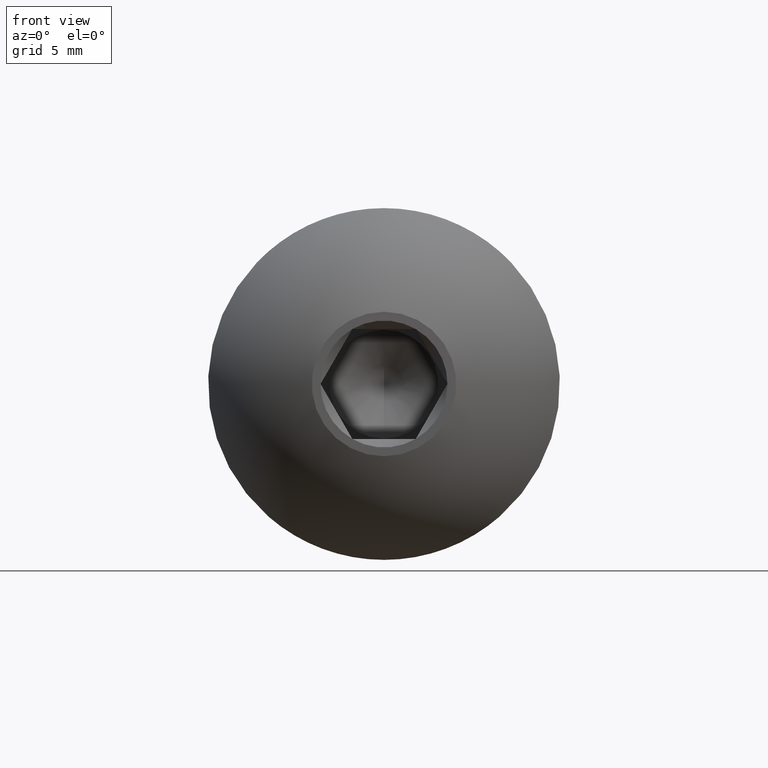
[diagram: clean part render]
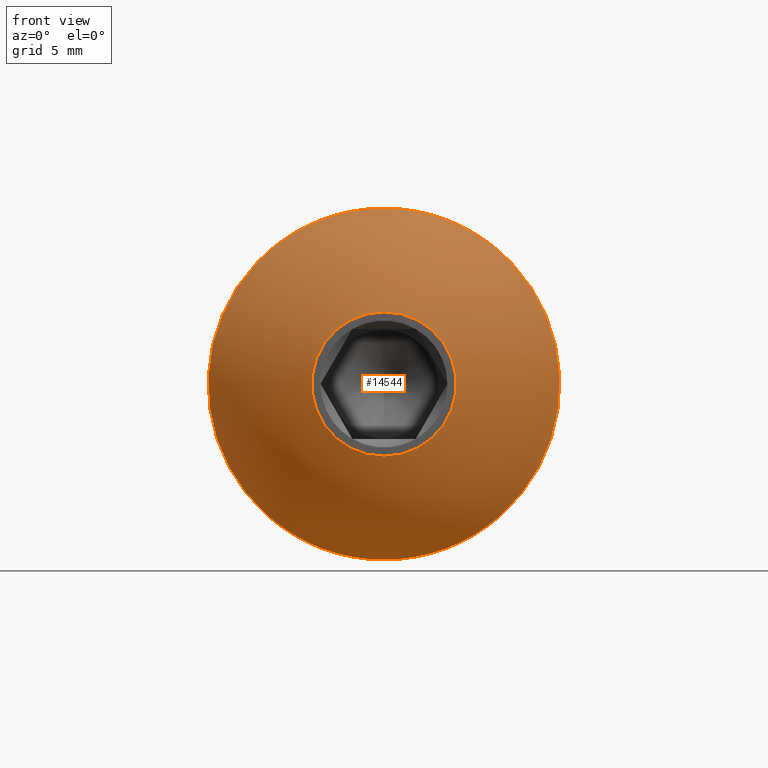
[diagram: same view with one face highlighted and labeled with its STEP entity id]
A machine part, front view. The second image highlights one B-rep face of the part: STEP entity #14544.
In plain terms, the highlighted spherical surface has radius 9.2531 mm.
Its self-contained STEP definition (entity closure, byte-faithful):
#296 = CIRCLE ( 'NONE', #6886, 3.286751345948126790 ) ;
#757 = CIRCLE ( 'NONE', #7056, 8.000000000000000000 ) ;
#837 = FACE_OUTER_BOUND ( 'NONE', #874, .T. ) ;
#874 = EDGE_LOOP ( 'NONE', ( #12892 ) ) ;
#1619 = CARTESIAN_POINT ( 'NONE',  ( 0.000000000000000000, 0.000000000000000000, 0.000000000000000000 ) ) ;
#2430 = DIRECTION ( 'NONE',  ( 1.000000000000000000, 0.000000000000000000, 0.000000000000000000 ) ) ;
#2717 = CARTESIAN_POINT ( 'NONE',  ( 0.000000000000000000, 4.000000000000000000, 0.000000000000000000 ) ) ;
#2781 = DIRECTION ( 'NONE',  ( 0.000000000000000000, 0.000000000000000000, -1.000000000000000000 ) ) ;
#3840 = DIRECTION ( 'NONE',  ( 0.000000000000000000, 0.000000000000000000, -1.000000000000000000 ) ) ;
#3858 = DIRECTION ( 'NONE',  ( -0.000000000000000000, -1.000000000000000000, -0.000000000000000000 ) ) ;
#3967 = EDGE_LOOP ( 'NONE', ( #11802 ) ) ;
#5238 = AXIS2_PLACEMENT_3D ( 'NONE', #6980, #11773, #2430 ) ;
#5511 = EDGE_CURVE ( 'NONE', #6864, #6864, #757, .T. ) ;
#6864 = VERTEX_POINT ( 'NONE', #11218 ) ;
#6886 = AXIS2_PLACEMENT_3D ( 'NONE', #1619, #3858, #2781 ) ;
#6980 = CARTESIAN_POINT ( 'NONE',  ( 0.000000000000000000, 8.649658198738521264, 0.000000000000000000 ) ) ;
#7056 = AXIS2_PLACEMENT_3D ( 'NONE', #2717, #13241, #3840 ) ;
#7213 = FACE_OUTER_BOUND ( 'NONE', #3967, .T. ) ;
#8903 = CARTESIAN_POINT ( 'NONE',  ( 0.000000000000000000, 0.000000000000000000, -3.286751345948126790 ) ) ;
#9571 = VERTEX_POINT ( 'NONE', #8903 ) ;
#9802 = EDGE_CURVE ( 'NONE', #9571, #9571, #296, .T. ) ;
#11218 = CARTESIAN_POINT ( 'NONE',  ( 0.000000000000000000, 4.000000000000000000, -8.000000000000000000 ) ) ;
#11773 = DIRECTION ( 'NONE',  ( 0.000000000000000000, 0.000000000000000000, 1.000000000000000000 ) ) ;
#11802 = ORIENTED_EDGE ( 'NONE', *, *, #5511, .T. ) ;
#12892 = ORIENTED_EDGE ( 'NONE', *, *, #9802, .F. ) ;
#13241 = DIRECTION ( 'NONE',  ( -0.000000000000000000, -1.000000000000000000, -0.000000000000000000 ) ) ;
#14544 = ADVANCED_FACE ( 'NONE', ( #7213, #837 ), #14865, .T. ) ;
#14865 = SPHERICAL_SURFACE ( 'NONE', #5238, 9.253070915382437533 ) ;